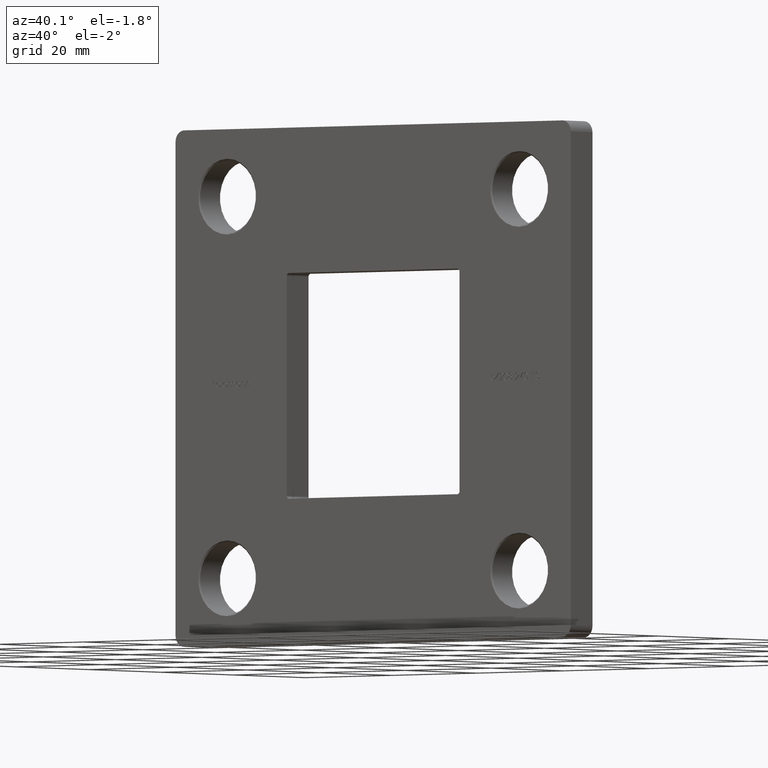
[diagram: clean part render]
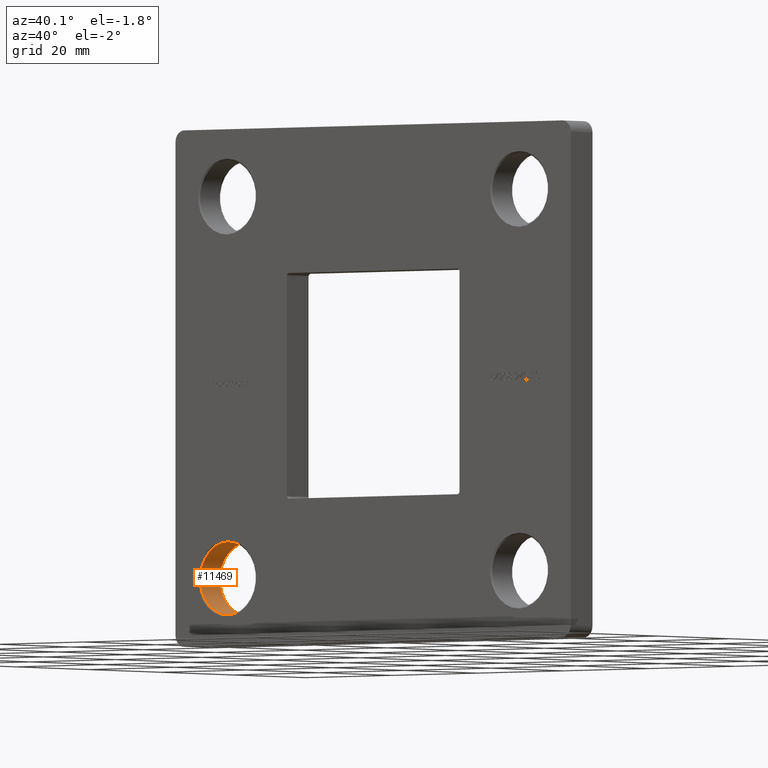
[diagram: same view with one face highlighted and labeled with its STEP entity id]
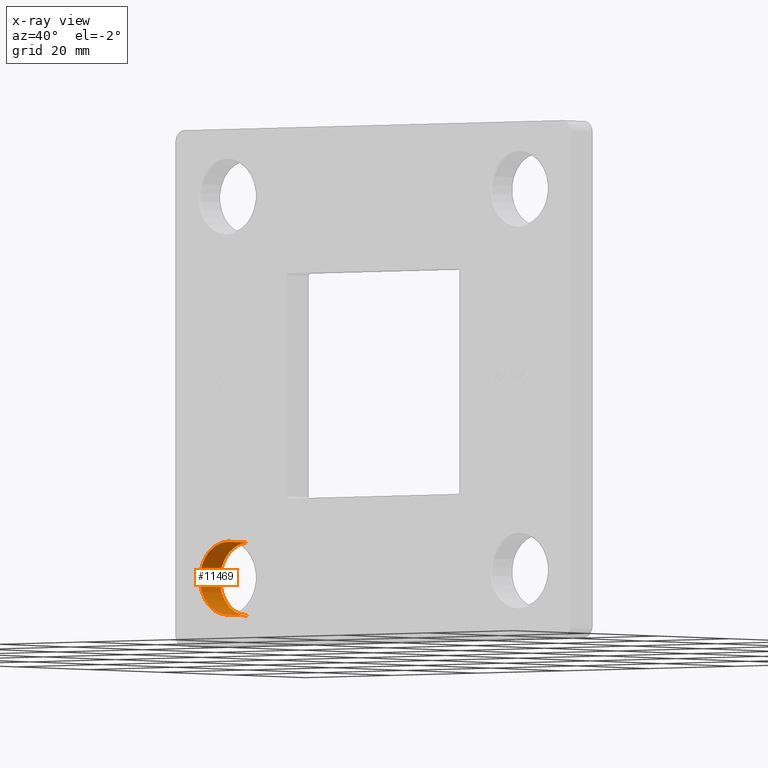
[diagram: x-ray of the same camera — body ghosted, the highlighted face saturated]
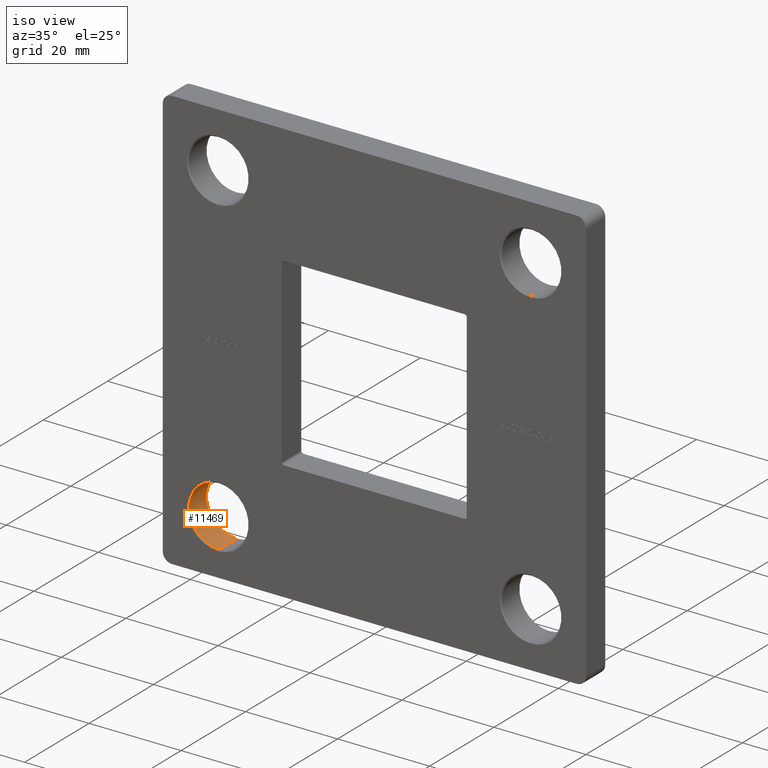
[diagram: same view with one face highlighted and labeled with its STEP entity id]
A machine part, auxiliary view. The second image highlights one B-rep face of the part: STEP entity #11469.
The next image is the same camera in x-ray: the body ghosted, the highlighted face saturated — about 0% of this face is hidden behind the body in this view.
A second angle (iso view) of the same face is appended — the face is thin or edge-on in the first view.
In plain terms, the highlighted cylindrical surface (edge-blend (fillet) strip) has radius 6.5 mm, axis along (-0, 1, -0).
Its self-contained STEP definition (entity closure, byte-faithful):
#236 = DIRECTION ( 'NONE',  ( 0.000000000000000000, 1.000000000000000000, 0.000000000000000000 ) ) ;
#262 = AXIS2_PLACEMENT_3D ( 'NONE', #10067, #236, #10010 ) ;
#551 = CIRCLE ( 'NONE', #15327, 6.499999999999999112 ) ;
#779 = EDGE_CURVE ( 'NONE', #11404, #13338, #11266, .T. ) ;
#864 = DIRECTION ( 'NONE',  ( -0.000000000000000000, 1.000000000000000000, -0.000000000000000000 ) ) ;
#918 = CARTESIAN_POINT ( 'NONE',  ( -34.00000000000000000, 0.000000000000000000, -40.50000000000000000 ) ) ;
#1474 = VERTEX_POINT ( 'NONE', #2070 ) ;
#1805 = LINE ( 'NONE', #918, #10817 ) ;
#2070 = CARTESIAN_POINT ( 'NONE',  ( -34.00000000000000000, 0.2500000000000132672, -40.50000000000000000 ) ) ;
#2775 = EDGE_LOOP ( 'NONE', ( #12361, #5407, #8095, #10154 ) ) ;
#2871 = CARTESIAN_POINT ( 'NONE',  ( -34.00000000000000000, 0.2500000000000132672, -27.50000000000000355 ) ) ;
#3179 = VERTEX_POINT ( 'NONE', #2871 ) ;
#3847 = CARTESIAN_POINT ( 'NONE',  ( -34.00000000000000000, 0.2500000000000132672, -34.00000000000000000 ) ) ;
#3987 = CARTESIAN_POINT ( 'NONE',  ( -34.00000000000000000, 5.750000000000000888, -27.50000000000000355 ) ) ;
#4213 = CARTESIAN_POINT ( 'NONE',  ( -34.00000000000000000, 0.000000000000000000, -34.00000000000000000 ) ) ;
#4262 = DIRECTION ( 'NONE',  ( 0.000000000000000000, 0.000000000000000000, 1.000000000000000000 ) ) ;
#4301 = LINE ( 'NONE', #8636, #7752 ) ;
#4591 = EDGE_CURVE ( 'NONE', #3179, #13338, #4301, .T. ) ;
#5407 = ORIENTED_EDGE ( 'NONE', *, *, #12292, .T. ) ;
#6315 = DIRECTION ( 'NONE',  ( -0.000000000000000000, 1.000000000000000000, -0.000000000000000000 ) ) ;
#6522 = CARTESIAN_POINT ( 'NONE',  ( -34.00000000000000000, 5.750000000000000888, -40.50000000000000000 ) ) ;
#6638 = FACE_OUTER_BOUND ( 'NONE', #2775, .T. ) ;
#7017 = CYLINDRICAL_SURFACE ( 'NONE', #13274, 6.499999999999999112 ) ;
#7752 = VECTOR ( 'NONE', #6315, 1000.000000000000000 ) ;
#7866 = DIRECTION ( 'NONE',  ( -0.000000000000000000, 1.000000000000000000, -0.000000000000000000 ) ) ;
#7921 = EDGE_CURVE ( 'NONE', #3179, #1474, #551, .T. ) ;
#8095 = ORIENTED_EDGE ( 'NONE', *, *, #779, .T. ) ;
#8636 = CARTESIAN_POINT ( 'NONE',  ( -34.00000000000000000, 0.000000000000000000, -27.50000000000000355 ) ) ;
#9836 = DIRECTION ( 'NONE',  ( -0.000000000000000000, -1.000000000000000000, -0.000000000000000000 ) ) ;
#10010 = DIRECTION ( 'NONE',  ( 0.000000000000000000, 0.000000000000000000, 1.000000000000000000 ) ) ;
#10067 = CARTESIAN_POINT ( 'NONE',  ( -34.00000000000000000, 5.750000000000000888, -34.00000000000000000 ) ) ;
#10154 = ORIENTED_EDGE ( 'NONE', *, *, #4591, .F. ) ;
#10817 = VECTOR ( 'NONE', #864, 1000.000000000000000 ) ;
#11266 = CIRCLE ( 'NONE', #262, 6.499999999999999112 ) ;
#11404 = VERTEX_POINT ( 'NONE', #6522 ) ;
#11469 = ADVANCED_FACE ( 'NONE', ( #6638 ), #7017, .F. ) ;
#12292 = EDGE_CURVE ( 'NONE', #1474, #11404, #1805, .T. ) ;
#12361 = ORIENTED_EDGE ( 'NONE', *, *, #7921, .T. ) ;
#13274 = AXIS2_PLACEMENT_3D ( 'NONE', #4213, #7866, #4262 ) ;
#13338 = VERTEX_POINT ( 'NONE', #3987 ) ;
#14659 = DIRECTION ( 'NONE',  ( 0.000000000000000000, 0.000000000000000000, 1.000000000000000000 ) ) ;
#15327 = AXIS2_PLACEMENT_3D ( 'NONE', #3847, #9836, #14659 ) ;